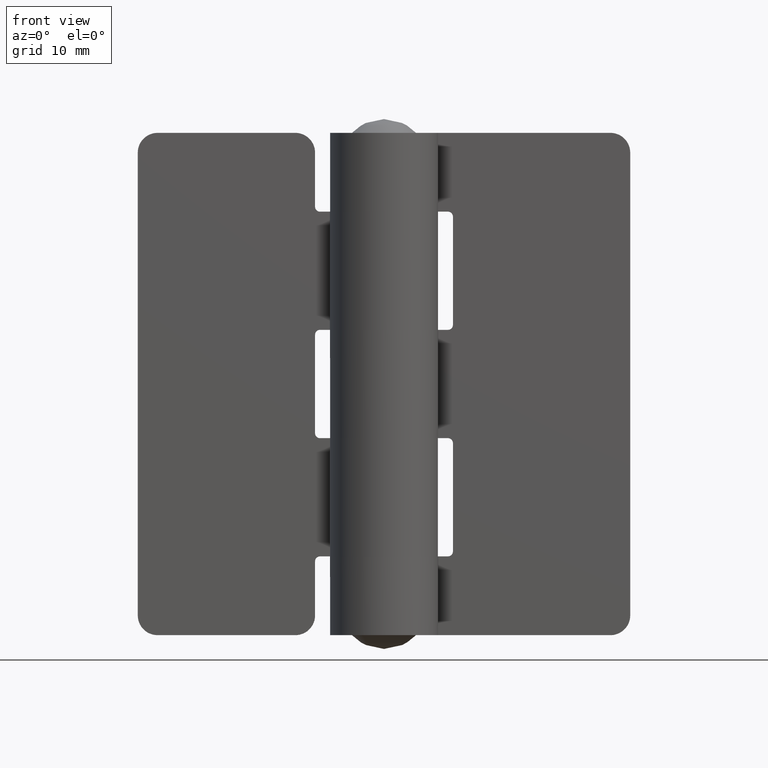
[diagram: clean part render]
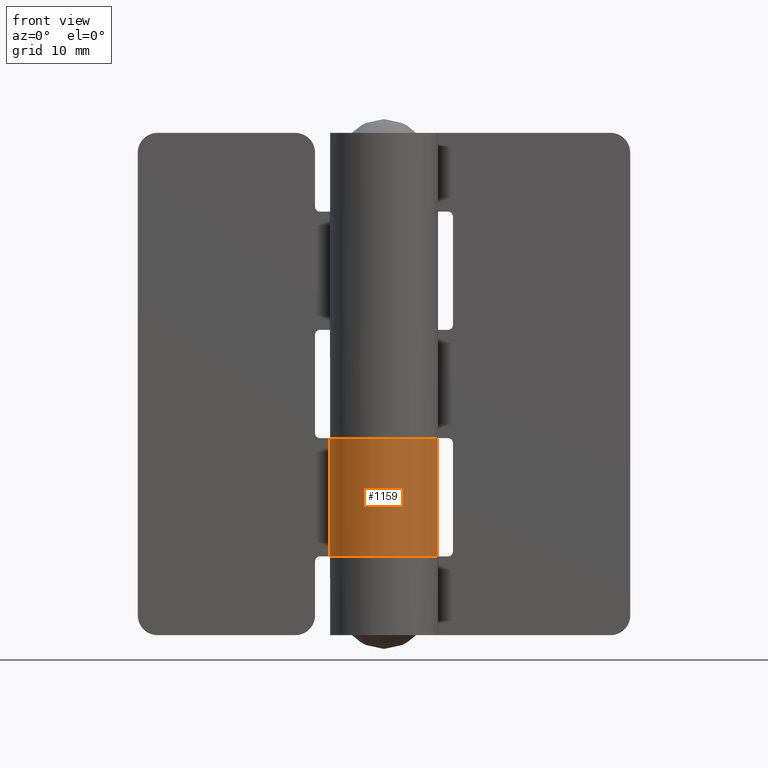
[diagram: same view with one face highlighted and labeled with its STEP entity id]
A machine part, front view. The second image highlights one B-rep face of the part: STEP entity #1159.
In plain terms, the highlighted face is a freeform B-spline surface patch.
Its self-contained STEP definition (entity closure, byte-faithful):
#537=CARTESIAN_POINT('',(0.0,5.499999000000000,20.0));
#538=VERTEX_POINT('',#537);
#573=CARTESIAN_POINT('',(-4.641927929212170,2.949999000000000,20.0));
#574=VERTEX_POINT('',#573);
#580=CARTESIAN_POINT('',(-4.641927929212169,2.949999000000004,20.0));
#581=CARTESIAN_POINT('',(-6.930557278933692,-0.651240355703851,20.0));
#582=CARTESIAN_POINT('',(-4.011121749750013,-3.763095973886847,20.0));
#583=CARTESIAN_POINT('',(-1.091686220566334,-6.874951592069840,20.0));
#584=CARTESIAN_POINT('',(2.648112294635553,-4.820528007905464,20.0));
#585=CARTESIAN_POINT('',(6.387910809837440,-2.766104423741089,20.0));
#586=CARTESIAN_POINT('',(5.327423778101057,1.366947288129451,20.0));
#587=CARTESIAN_POINT('',(4.266936746364672,5.499999000000002,20.0));
#588=CARTESIAN_POINT('',(0.0,5.499999000000000,20.0));
#596=(BOUNDED_CURVE()B_SPLINE_CURVE(2,(#580,#581,#582,#583,#584,#585,#586,#587,#588),.UNSPECIFIED.,.F.,.U.)B_SPLINE_CURVE_WITH_KNOTS((3,2,2,2,3),(0.0,0.250000000000000,0.500000000000000,0.750000000000000,1.0),.UNSPECIFIED.)CURVE()GEOMETRIC_REPRESENTATION_ITEM()RATIONAL_B_SPLINE_CURVE((1.0,0.790106295303784,1.0,0.790106295303784,1.0,0.790106295303784,1.0,0.790106295303784,1.0))REPRESENTATION_ITEM(''));
#597=EDGE_CURVE('',#574,#538,#596,.T.);
#705=CARTESIAN_POINT('',(0.0,5.499999000000000,8.0));
#706=VERTEX_POINT('',#705);
#712=CARTESIAN_POINT('',(-4.641927929212170,2.949999000000000,8.0));
#713=VERTEX_POINT('',#712);
#714=CARTESIAN_POINT('',(-4.641927929212169,2.949999000000004,8.0));
#715=CARTESIAN_POINT('',(-6.930557278933692,-0.651240355703851,8.0));
#716=CARTESIAN_POINT('',(-4.011121749750013,-3.763095973886847,8.0));
#717=CARTESIAN_POINT('',(-1.091686220566334,-6.874951592069840,8.0));
#718=CARTESIAN_POINT('',(2.648112294635553,-4.820528007905464,8.0));
#719=CARTESIAN_POINT('',(6.387910809837440,-2.766104423741089,8.0));
#720=CARTESIAN_POINT('',(5.327423778101057,1.366947288129451,8.0));
#721=CARTESIAN_POINT('',(4.266936746364672,5.499999000000002,8.0));
#722=CARTESIAN_POINT('',(0.0,5.499999000000000,8.0));
#730=(BOUNDED_CURVE()B_SPLINE_CURVE(2,(#714,#715,#716,#717,#718,#719,#720,#721,#722),.UNSPECIFIED.,.F.,.U.)B_SPLINE_CURVE_WITH_KNOTS((3,2,2,2,3),(0.0,0.250000000000000,0.500000000000000,0.750000000000000,1.0),.UNSPECIFIED.)CURVE()GEOMETRIC_REPRESENTATION_ITEM()RATIONAL_B_SPLINE_CURVE((1.0,0.790106295303784,1.0,0.790106295303784,1.0,0.790106295303784,1.0,0.790106295303784,1.0))REPRESENTATION_ITEM(''));
#731=EDGE_CURVE('',#713,#706,#730,.T.);
#1009=CARTESIAN_POINT('',(-4.641927929212170,2.949999000000000,20.0));
#1010=CARTESIAN_POINT('',(-4.641927929212170,2.949999000000000,8.0));
#1011=QUASI_UNIFORM_CURVE('',1,(#1009,#1010),.UNSPECIFIED.,.F.,.U.);
#1012=EDGE_CURVE('',#574,#713,#1011,.T.);
#1076=CARTESIAN_POINT('',(0.0,5.499999000000000,20.0));
#1077=CARTESIAN_POINT('',(0.0,5.499999000000000,8.0));
#1078=QUASI_UNIFORM_CURVE('',1,(#1076,#1077),.UNSPECIFIED.,.F.,.U.);
#1079=EDGE_CURVE('',#538,#706,#1078,.T.);
#1131=CARTESIAN_POINT('',(-4.563115285114284,3.070499616472435,20.300000000000001));
#1132=CARTESIAN_POINT('',(-4.563115285114284,3.070499616472435,7.692499999999999));
#1133=CARTESIAN_POINT('',(-8.377500235826686,-2.598114760982548,20.300000000000001));
#1134=CARTESIAN_POINT('',(-8.377500235826686,-2.598114760982548,7.692499999999999));
#1135=CARTESIAN_POINT('',(-2.024961185688061,-5.113660254304913,20.300000000000001));
#1136=CARTESIAN_POINT('',(-2.024961185688061,-5.113660254304913,7.692499999999999));
#1137=CARTESIAN_POINT('',(4.327577864450565,-7.629205747627275,20.300000000000001));
#1138=CARTESIAN_POINT('',(4.327577864450565,-7.629205747627275,7.692499999999999));
#1139=CARTESIAN_POINT('',(5.428173731409754,-0.885956512270263,20.300000000000001));
#1140=CARTESIAN_POINT('',(5.428173731409754,-0.885956512270263,7.692499999999999));
#1141=CARTESIAN_POINT('',(6.528769598368942,5.857292723086750,20.300000000000001));
#1142=CARTESIAN_POINT('',(6.528769598368942,5.857292723086750,7.692499999999999));
#1143=CARTESIAN_POINT('',(-0.293941303655043,5.492138700907558,20.300000000000001));
#1144=CARTESIAN_POINT('',(-0.293941303655043,5.492138700907558,7.692499999999999));
#1152=(BOUNDED_SURFACE()B_SPLINE_SURFACE(1,2,((#1131,#1133,#1135,#1137,#1139,#1141,#1143),(#1132,#1134,#1136,#1138,#1140,#1142,#1144)),.UNSPECIFIED.,.F.,.F.,.U.)B_SPLINE_SURFACE_WITH_KNOTS((2,2),(3,2,2,3),(0.0,12.607500000000000),(0.0,10.532764460398340,21.065528920796680,31.598293381195031),.UNSPECIFIED.)GEOMETRIC_REPRESENTATION_ITEM()RATIONAL_B_SPLINE_SURFACE(((1.0,0.627057105746662,1.0,0.627057105746662,1.0,0.627057105746662,1.0),(1.0,0.627057105746662,1.0,0.627057105746662,1.0,0.627057105746662,1.0)))REPRESENTATION_ITEM('')SURFACE());
#1153=ORIENTED_EDGE('',*,*,#597,.F.);
#1154=ORIENTED_EDGE('',*,*,#1012,.T.);
#1155=ORIENTED_EDGE('',*,*,#731,.T.);
#1156=ORIENTED_EDGE('',*,*,#1079,.F.);
#1157=EDGE_LOOP('',(#1153,#1154,#1155,#1156));
#1158=FACE_OUTER_BOUND('',#1157,.T.);
#1159=ADVANCED_FACE('',(#1158),#1152,.T.);